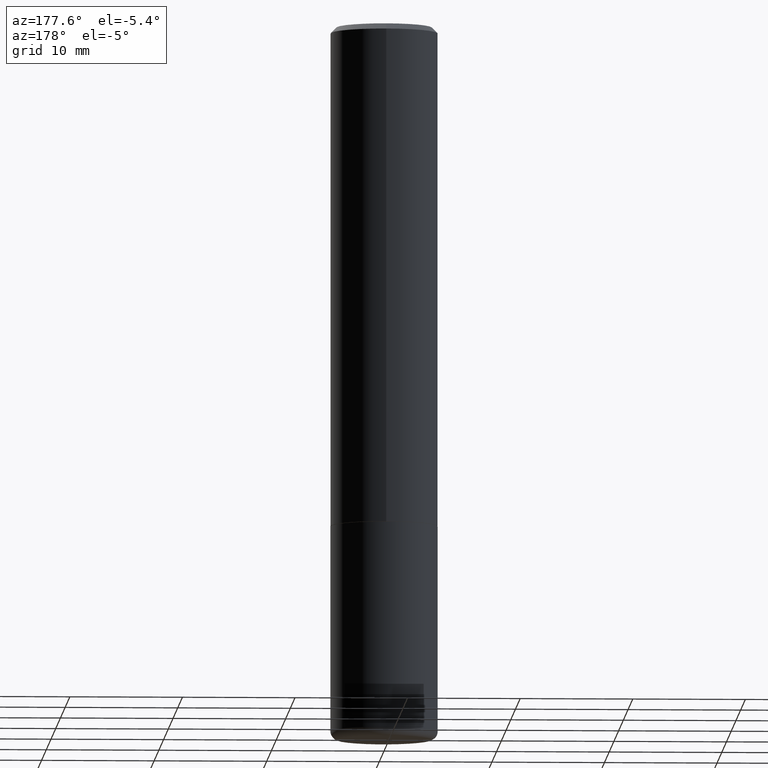
[diagram: clean part render]
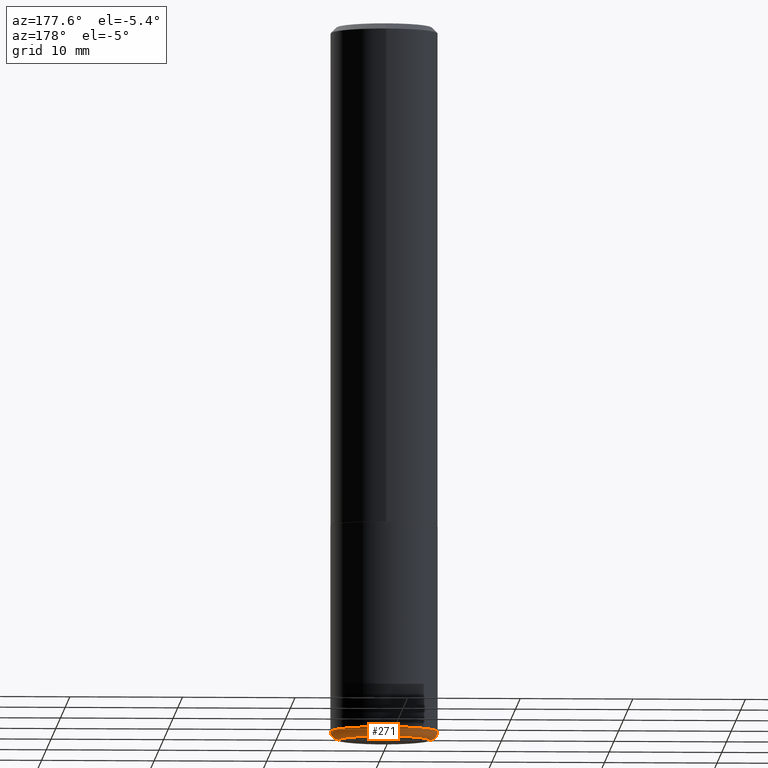
[diagram: same view with one face highlighted and labeled with its STEP entity id]
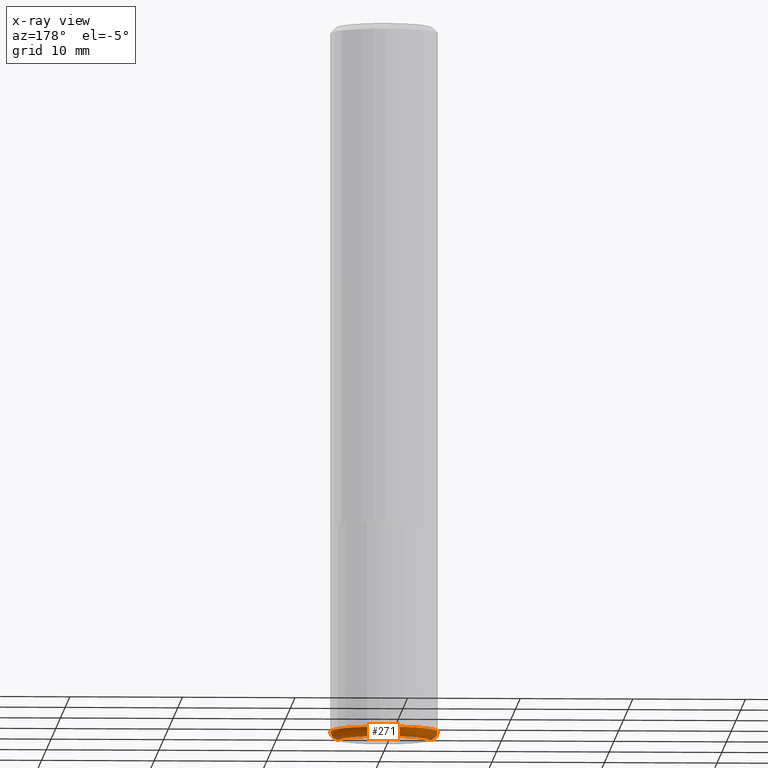
[diagram: x-ray of the same camera — body ghosted, the highlighted face saturated]
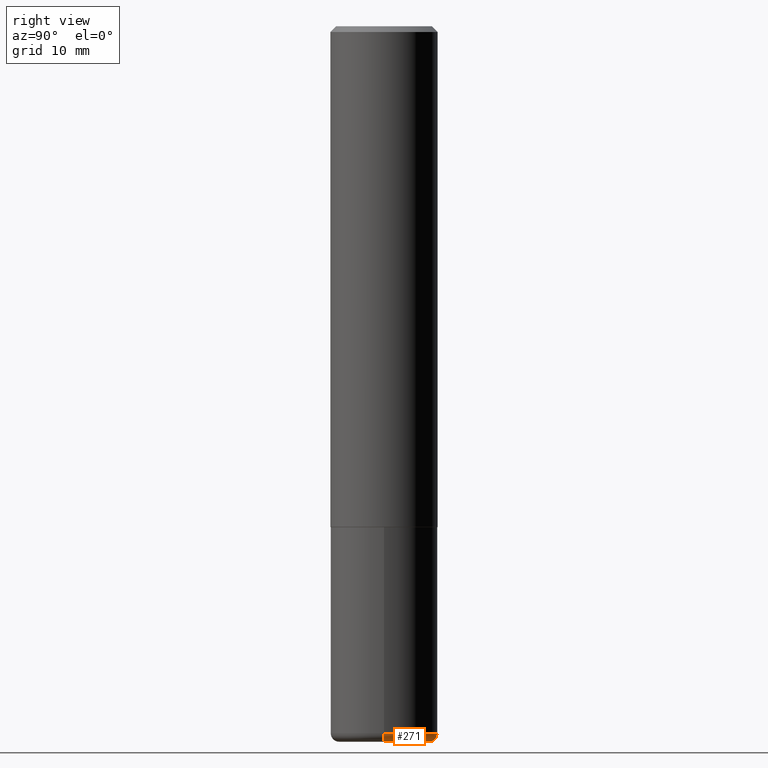
[diagram: same view with one face highlighted and labeled with its STEP entity id]
A machine part, auxiliary view. The second image highlights one B-rep face of the part: STEP entity #271.
The next image is the same camera in x-ray: the body ghosted, the highlighted face saturated — about 0% of this face is hidden behind the body in this view.
A second angle (right view) of the same face is appended — the face is thin or edge-on in the first view.
In plain terms, the highlighted toroidal blend (fillet) surface has major radius 4.0005 mm and minor (blend) radius 0.762 mm.
Its self-contained STEP definition (entity closure, byte-faithful):
#1 = AXIS2_PLACEMENT_3D ( 'NONE', #156, #122, #287 ) ;
#7 = ORIENTED_EDGE ( 'NONE', *, *, #300, .F. ) ;
#9 = DIRECTION ( 'NONE',  ( 7.105427357601001859E-15, 1.000000000000000000, -3.491481338843145583E-15 ) ) ;
#12 = CARTESIAN_POINT ( 'NONE',  ( -0.1875000000000000555, -7.291691277392382147E-15, -2.470000000000000195 ) ) ;
#26 = TOROIDAL_SURFACE ( 'NONE', #346, 0.1575000000000000289, 0.02999999999999998848 ) ;
#32 = VERTEX_POINT ( 'NONE', #307 ) ;
#57 = ORIENTED_EDGE ( 'NONE', *, *, #257, .F. ) ;
#60 = CIRCLE ( 'NONE', #167, 0.02999999999999998848 ) ;
#70 = CIRCLE ( 'NONE', #158, 0.1875000000000000555 ) ;
#87 = DIRECTION ( 'NONE',  ( -2.445468806185136597E-29, 3.491481338843145583E-15, 1.000000000000000000 ) ) ;
#117 = CARTESIAN_POINT ( 'NONE',  ( 6.113672015462842613E-29, -8.728703347107864943E-15, -2.500000000000000000 ) ) ;
#122 = DIRECTION ( 'NONE',  ( -6.982962677686266711E-15, -1.000000000000000000, 3.491481338843145583E-15 ) ) ;
#131 = DIRECTION ( 'NONE',  ( -1.000000000000000000, 7.105427357600993970E-15, 0.000000000000000000 ) ) ;
#156 = CARTESIAN_POINT ( 'NONE',  ( 0.1575000000000000289, -9.723775528678158264E-15, -2.470000000000000195 ) ) ;
#158 = AXIS2_PLACEMENT_3D ( 'NONE', #379, #265, #225 ) ;
#167 = AXIS2_PLACEMENT_3D ( 'NONE', #295, #9, #131 ) ;
#183 = EDGE_CURVE ( 'NONE', #32, #338, #243, .T. ) ;
#192 = ORIENTED_EDGE ( 'NONE', *, *, #183, .T. ) ;
#199 = DIRECTION ( 'NONE',  ( -2.445468806185136597E-29, 3.491481338843145583E-15, 1.000000000000000000 ) ) ;
#208 = CARTESIAN_POINT ( 'NONE',  ( -0.1575000000000000289, -7.450644907839044743E-15, -2.500000000000000000 ) ) ;
#212 = CARTESIAN_POINT ( 'NONE',  ( 0.1875000000000000555, -9.933264409008746581E-15, -2.470000000000000195 ) ) ;
#219 = DIRECTION ( 'NONE',  ( 1.000000000000000000, -6.982962677686267499E-15, 0.000000000000000000 ) ) ;
#225 = DIRECTION ( 'NONE',  ( 1.000000000000000000, -6.982962677686265922E-15, 0.000000000000000000 ) ) ;
#229 = CIRCLE ( 'NONE', #1, 0.02999999999999998848 ) ;
#243 = CIRCLE ( 'NONE', #341, 0.1575000000000000289 ) ;
#257 = EDGE_CURVE ( 'NONE', #321, #312, #70, .T. ) ;
#265 = DIRECTION ( 'NONE',  ( -2.445468806185136597E-29, 3.491481338843145583E-15, 1.000000000000000000 ) ) ;
#271 = ADVANCED_FACE ( 'NONE', ( #316 ), #26, .T. ) ;
#287 = DIRECTION ( 'NONE',  ( 1.000000000000000000, -6.982962677686270655E-15, 0.000000000000000000 ) ) ;
#295 = CARTESIAN_POINT ( 'NONE',  ( -0.1575000000000000289, -7.504854098120412392E-15, -2.470000000000000195 ) ) ;
#300 = EDGE_CURVE ( 'NONE', #32, #321, #229, .T. ) ;
#307 = CARTESIAN_POINT ( 'NONE',  ( 0.1575000000000000289, -9.828519968843451634E-15, -2.500000000000000000 ) ) ;
#310 = EDGE_CURVE ( 'NONE', #338, #312, #60, .T. ) ;
#312 = VERTEX_POINT ( 'NONE', #12 ) ;
#316 = FACE_OUTER_BOUND ( 'NONE', #352, .T. ) ;
#321 = VERTEX_POINT ( 'NONE', #212 ) ;
#323 = DIRECTION ( 'NONE',  ( 1.000000000000000000, -6.982962677686267499E-15, 4.883557194083113462E-29 ) ) ;
#338 = VERTEX_POINT ( 'NONE', #208 ) ;
#341 = AXIS2_PLACEMENT_3D ( 'NONE', #117, #87, #219 ) ;
#346 = AXIS2_PLACEMENT_3D ( 'NONE', #358, #199, #323 ) ;
#352 = EDGE_LOOP ( 'NONE', ( #192, #393, #57, #7 ) ) ;
#358 = CARTESIAN_POINT ( 'NONE',  ( 6.040307951277287977E-29, -8.623958906942569995E-15, -2.470000000000000195 ) ) ;
#379 = CARTESIAN_POINT ( 'NONE',  ( 6.040307951277287977E-29, -8.623958906942569995E-15, -2.470000000000000195 ) ) ;
#393 = ORIENTED_EDGE ( 'NONE', *, *, #310, .T. ) ;